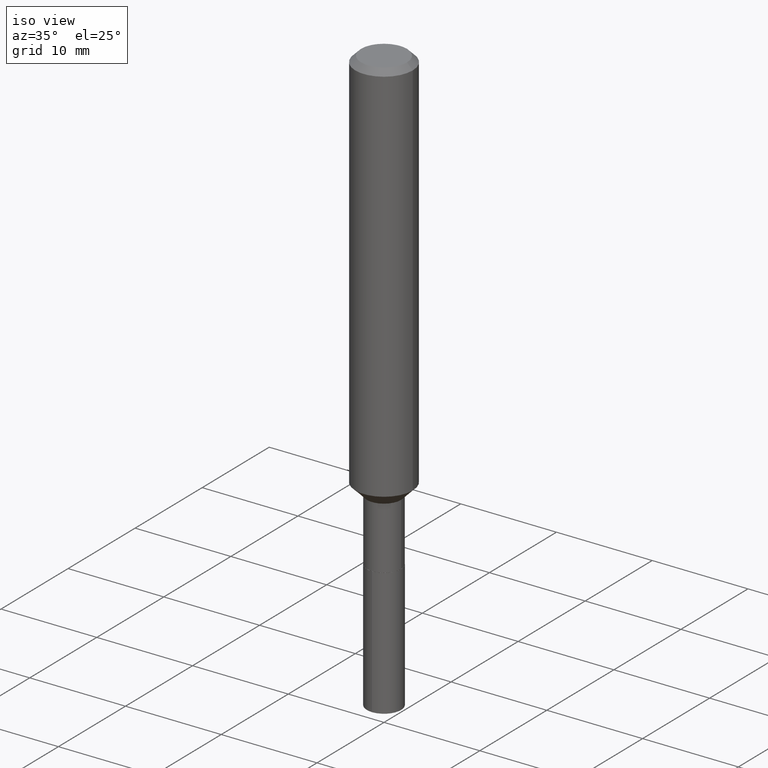
[diagram: clean part render]
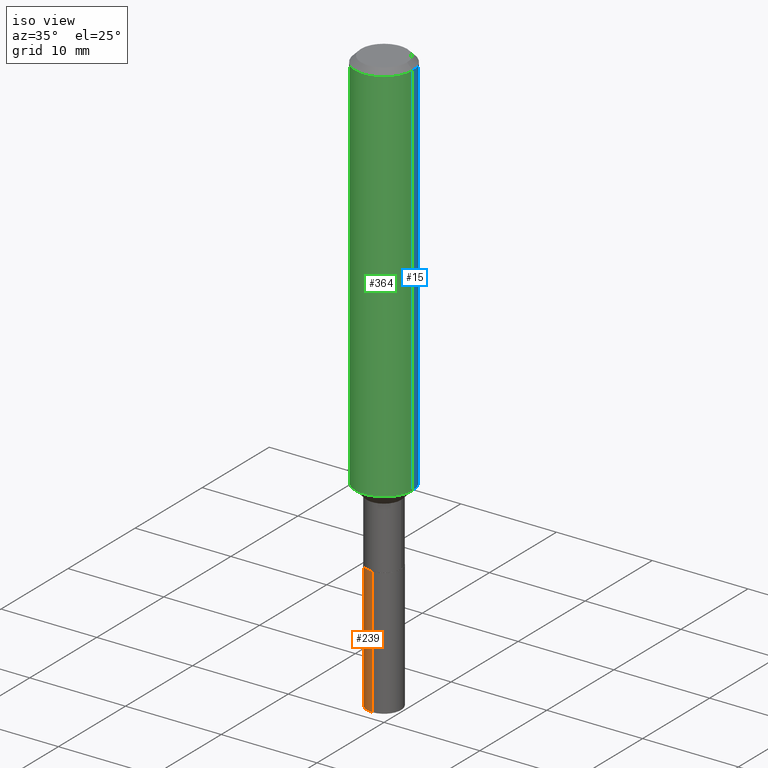
[diagram: same view with three faces highlighted in distinct colors, each labeled with its STEP entity id]
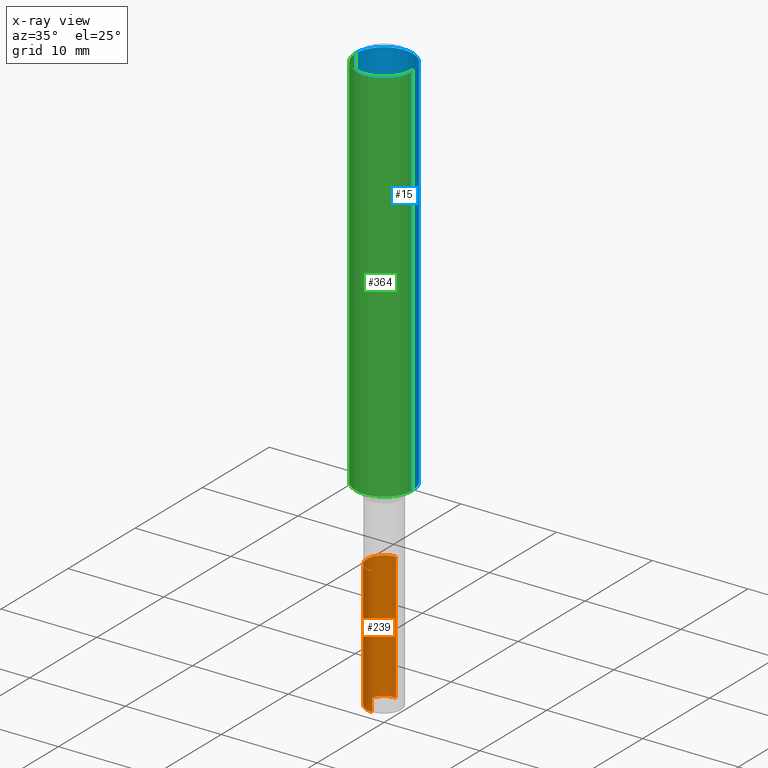
[diagram: x-ray of the same camera — body ghosted, the three highlighted faces saturated]
A machine part, iso view with three faces highlighted in distinct colors.
The next image is the same camera in x-ray (body ghosted, the three faces saturated) — at least one of them is partly hidden behind the body in this view.
Their STEP definitions:

[orange] entity #239 — the highlighted cylindrical surface (edge-blend (fillet) strip) has radius 1.7856 mm, axis along (-0, 0, 1).
#4 = AXIS2_PLACEMENT_3D ( 'NONE', #158, #52, #311 ) ;
#9 = DIRECTION ( 'NONE',  ( -6.982962677686266711E-15, -1.000000000000000000, 3.885985766236505386E-15 ) ) ;
#11 = AXIS2_PLACEMENT_3D ( 'NONE', #389, #416, #9 ) ;
#16 = DIRECTION ( 'NONE',  ( -2.426947592678621313E-29, 3.518004770746482411E-15, 1.000000000000000000 ) ) ;
#22 = VECTOR ( 'NONE', #387, 39.37007874015748143 ) ;
#41 = EDGE_CURVE ( 'NONE', #354, #154, #437, .T. ) ;
#52 = DIRECTION ( 'NONE',  ( -2.426947592678621032E-29, 3.518004770746482806E-15, 1.000000000000000000 ) ) ;
#54 = DIRECTION ( 'NONE',  ( -2.426947592678621032E-29, 3.518004770746482806E-15, 1.000000000000000000 ) ) ;
#59 = EDGE_CURVE ( 'NONE', #354, #270, #84, .T. ) ;
#67 = VERTEX_POINT ( 'NONE', #468 ) ;
#84 = LINE ( 'NONE', #228, #22 ) ;
#89 = ORIENTED_EDGE ( 'NONE', *, *, #427, .F. ) ;
#92 = LINE ( 'NONE', #394, #269 ) ;
#129 = ORIENTED_EDGE ( 'NONE', *, *, #366, .T. ) ;
#143 = AXIS2_PLACEMENT_3D ( 'NONE', #396, #54, #236 ) ;
#154 = VERTEX_POINT ( 'NONE', #446 ) ;
#158 = CARTESIAN_POINT ( 'NONE',  ( 4.621202403048053204E-29, -6.597852286011892490E-15, -1.889700000000000157 ) ) ;
#164 = CIRCLE ( 'NONE', #4, 0.07030000000000000138 ) ;
#204 = EDGE_LOOP ( 'NONE', ( #457, #488, #129, #89 ) ) ;
#228 = CARTESIAN_POINT ( 'NONE',  ( 4.995115432393966874E-16, 0.07029999999999340943, -1.889700000000000157 ) ) ;
#236 = DIRECTION ( 'NONE',  ( -6.982962677686266711E-15, -1.000000000000000000, 3.885985766236504597E-15 ) ) ;
#239 = ADVANCED_FACE ( 'NONE', ( #385 ), #349, .T. ) ;
#269 = VECTOR ( 'NONE', #16, 39.37007874015748143 ) ;
#270 = VERTEX_POINT ( 'NONE', #391 ) ;
#311 = DIRECTION ( 'NONE',  ( -6.982962677686265133E-15, -1.000000000000000000, 3.885985766236505386E-15 ) ) ;
#345 = CARTESIAN_POINT ( 'NONE',  ( 4.995115432394094078E-16, 0.07029999999999157756, -2.413208093564270129 ) ) ;
#349 = CYLINDRICAL_SURFACE ( 'NONE', #11, 0.07030000000000000138 ) ;
#354 = VERTEX_POINT ( 'NONE', #345 ) ;
#366 = EDGE_CURVE ( 'NONE', #154, #67, #92, .T. ) ;
#385 = FACE_OUTER_BOUND ( 'NONE', #204, .T. ) ;
#387 = DIRECTION ( 'NONE',  ( -2.426947592678621313E-29, 3.518004770746482411E-15, 1.000000000000000000 ) ) ;
#389 = CARTESIAN_POINT ( 'NONE',  ( 4.621202403048052644E-29, -6.597852286011891701E-15, -1.889699999999999713 ) ) ;
#391 = CARTESIAN_POINT ( 'NONE',  ( 4.995115432394095064E-16, 0.07029999999999340943, -1.889700000000000379 ) ) ;
#394 = CARTESIAN_POINT ( 'NONE',  ( -4.909022762412983059E-16, -0.07030000000000660720, -1.889699999999999491 ) ) ;
#396 = CARTESIAN_POINT ( 'NONE',  ( 5.891729110471632150E-29, -8.439556256695389981E-15, -2.413208093564270129 ) ) ;
#416 = DIRECTION ( 'NONE',  ( -2.426947592678621032E-29, 3.518004770746482806E-15, 1.000000000000000000 ) ) ;
#427 = EDGE_CURVE ( 'NONE', #270, #67, #164, .T. ) ;
#437 = CIRCLE ( 'NONE', #143, 0.07030000000000001525 ) ;
#446 = CARTESIAN_POINT ( 'NONE',  ( -4.909022762412856842E-16, -0.07030000000000845295, -2.413208093564269685 ) ) ;
#457 = ORIENTED_EDGE ( 'NONE', *, *, #59, .F. ) ;
#468 = CARTESIAN_POINT ( 'NONE',  ( -4.909022762412983059E-16, -0.07030000000000659333, -1.889699999999999713 ) ) ;
#488 = ORIENTED_EDGE ( 'NONE', *, *, #41, .T. ) ;

[blue] entity #15 — the highlighted cylindrical surface (edge-blend (fillet) strip) has radius 2.9997 mm, axis along (-0, 0, 1).
#3 = AXIS2_PLACEMENT_3D ( 'NONE', #241, #327, #139 ) ;
#10 = CYLINDRICAL_SURFACE ( 'NONE', #225, 0.1181000000000001077 ) ;
#14 = FACE_OUTER_BOUND ( 'NONE', #148, .T. ) ;
#15 = ADVANCED_FACE ( 'NONE', ( #14 ), #10, .T. ) ;
#20 = DIRECTION ( 'NONE',  ( 1.000000000000000000, -6.982962677686269077E-15, 0.000000000000000000 ) ) ;
#36 = CIRCLE ( 'NONE', #3, 0.1180999999999999966 ) ;
#72 = VERTEX_POINT ( 'NONE', #431 ) ;
#75 = CARTESIAN_POINT ( 'NONE',  ( 0.1181000000000001632, -6.357289221765599043E-15, -1.584600000000000453 ) ) ;
#76 = DIRECTION ( 'NONE',  ( -2.445468806185136877E-29, 3.491481338843145188E-15, 1.000000000000000000 ) ) ;
#78 = EDGE_CURVE ( 'NONE', #167, #72, #36, .T. ) ;
#87 = EDGE_CURVE ( 'NONE', #242, #412, #334, .T. ) ;
#93 = VECTOR ( 'NONE', #159, 39.37007874015748143 ) ;
#124 = CARTESIAN_POINT ( 'NONE',  ( 0.1180999999999999966, -9.071566814582237199E-16, -0.02362000000000014088 ) ) ;
#139 = DIRECTION ( 'NONE',  ( 1.000000000000000000, -6.982962677686266711E-15, 0.000000000000000000 ) ) ;
#148 = EDGE_LOOP ( 'NONE', ( #255, #342, #302, #380 ) ) ;
#159 = DIRECTION ( 'NONE',  ( -2.445468806185136877E-29, 3.491481338843145188E-15, 1.000000000000000000 ) ) ;
#167 = VERTEX_POINT ( 'NONE', #124 ) ;
#176 = AXIS2_PLACEMENT_3D ( 'NONE', #480, #289, #20 ) ;
#199 = LINE ( 'NONE', #235, #444 ) ;
#200 = DIRECTION ( 'NONE',  ( 1.000000000000000000, -6.982962677686266711E-15, 4.876176775795935793E-29 ) ) ;
#225 = AXIS2_PLACEMENT_3D ( 'NONE', #435, #426, #200 ) ;
#230 = CARTESIAN_POINT ( 'NONE',  ( -0.1181000000000001077, 8.391509709326790846E-16, -5.809262341591049389E-30 ) ) ;
#235 = CARTESIAN_POINT ( 'NONE',  ( 0.1181000000000001077, -8.246878922347488542E-16, 5.758764772215005345E-30 ) ) ;
#241 = CARTESIAN_POINT ( 'NONE',  ( 5.776197320209327532E-31, -8.246878922347559293E-17, -0.02362000000000014088 ) ) ;
#242 = VERTEX_POINT ( 'NONE', #75 ) ;
#255 = ORIENTED_EDGE ( 'NONE', *, *, #87, .T. ) ;
#256 = CARTESIAN_POINT ( 'NONE',  ( -0.1181000000000001632, -4.693450358598171005E-15, -1.584600000000000453 ) ) ;
#289 = DIRECTION ( 'NONE',  ( -2.445468806185136597E-29, 3.491481338843145583E-15, 1.000000000000000000 ) ) ;
#302 = ORIENTED_EDGE ( 'NONE', *, *, #78, .F. ) ;
#327 = DIRECTION ( 'NONE',  ( -2.445468806185136597E-29, 3.491481338843145583E-15, 1.000000000000000000 ) ) ;
#334 = CIRCLE ( 'NONE', #176, 0.1181000000000001909 ) ;
#342 = ORIENTED_EDGE ( 'NONE', *, *, #409, .T. ) ;
#348 = LINE ( 'NONE', #230, #93 ) ;
#380 = ORIENTED_EDGE ( 'NONE', *, *, #490, .F. ) ;
#409 = EDGE_CURVE ( 'NONE', #412, #72, #348, .T. ) ;
#412 = VERTEX_POINT ( 'NONE', #256 ) ;
#426 = DIRECTION ( 'NONE',  ( -2.445468806185136597E-29, 3.491481338843145583E-15, 1.000000000000000000 ) ) ;
#431 = CARTESIAN_POINT ( 'NONE',  ( -0.1180999999999999966, -1.968384088444482555E-15, -0.02362000000000014088 ) ) ;
#435 = CARTESIAN_POINT ( 'NONE',  ( 0.000000000000000000, 0.000000000000000000, 0.000000000000000000 ) ) ;
#444 = VECTOR ( 'NONE', #76, 39.37007874015748143 ) ;
#480 = CARTESIAN_POINT ( 'NONE',  ( 3.875089870280967892E-29, -5.532601329530849202E-15, -1.584600000000000453 ) ) ;
#490 = EDGE_CURVE ( 'NONE', #242, #167, #199, .T. ) ;

[green] entity #364 — the highlighted cylindrical surface (edge-blend (fillet) strip) has radius 2.9997 mm, axis along (-0, 0, 1).
#28 = ORIENTED_EDGE ( 'NONE', *, *, #490, .T. ) ;
#46 = DIRECTION ( 'NONE',  ( 1.000000000000000000, -6.982962677686269077E-15, 0.000000000000000000 ) ) ;
#49 = CIRCLE ( 'NONE', #399, 0.1181000000000001909 ) ;
#57 = AXIS2_PLACEMENT_3D ( 'NONE', #127, #390, #306 ) ;
#72 = VERTEX_POINT ( 'NONE', #431 ) ;
#75 = CARTESIAN_POINT ( 'NONE',  ( 0.1181000000000001632, -6.357289221765599043E-15, -1.584600000000000453 ) ) ;
#76 = DIRECTION ( 'NONE',  ( -2.445468806185136877E-29, 3.491481338843145188E-15, 1.000000000000000000 ) ) ;
#90 = CARTESIAN_POINT ( 'NONE',  ( 3.875089870280967892E-29, -5.532601329530849202E-15, -1.584600000000000453 ) ) ;
#93 = VECTOR ( 'NONE', #159, 39.37007874015748143 ) ;
#111 = DIRECTION ( 'NONE',  ( 1.000000000000000000, -6.982962677686266711E-15, 0.000000000000000000 ) ) ;
#114 = DIRECTION ( 'NONE',  ( -2.445468806185136597E-29, 3.491481338843145583E-15, 1.000000000000000000 ) ) ;
#124 = CARTESIAN_POINT ( 'NONE',  ( 0.1180999999999999966, -9.071566814582237199E-16, -0.02362000000000014088 ) ) ;
#127 = CARTESIAN_POINT ( 'NONE',  ( 0.000000000000000000, 0.000000000000000000, 0.000000000000000000 ) ) ;
#134 = ORIENTED_EDGE ( 'NONE', *, *, #483, .T. ) ;
#159 = DIRECTION ( 'NONE',  ( -2.445468806185136877E-29, 3.491481338843145188E-15, 1.000000000000000000 ) ) ;
#167 = VERTEX_POINT ( 'NONE', #124 ) ;
#170 = CIRCLE ( 'NONE', #205, 0.1180999999999999966 ) ;
#199 = LINE ( 'NONE', #235, #444 ) ;
#205 = AXIS2_PLACEMENT_3D ( 'NONE', #428, #246, #111 ) ;
#220 = EDGE_LOOP ( 'NONE', ( #448, #134, #28, #298 ) ) ;
#230 = CARTESIAN_POINT ( 'NONE',  ( -0.1181000000000001077, 8.391509709326790846E-16, -5.809262341591049389E-30 ) ) ;
#235 = CARTESIAN_POINT ( 'NONE',  ( 0.1181000000000001077, -8.246878922347488542E-16, 5.758764772215005345E-30 ) ) ;
#242 = VERTEX_POINT ( 'NONE', #75 ) ;
#246 = DIRECTION ( 'NONE',  ( -2.445468806185136597E-29, 3.491481338843145583E-15, 1.000000000000000000 ) ) ;
#256 = CARTESIAN_POINT ( 'NONE',  ( -0.1181000000000001632, -4.693450358598171005E-15, -1.584600000000000453 ) ) ;
#276 = CYLINDRICAL_SURFACE ( 'NONE', #57, 0.1181000000000001077 ) ;
#291 = EDGE_CURVE ( 'NONE', #72, #167, #170, .T. ) ;
#298 = ORIENTED_EDGE ( 'NONE', *, *, #291, .F. ) ;
#306 = DIRECTION ( 'NONE',  ( 1.000000000000000000, -6.982962677686266711E-15, 4.876176775795935793E-29 ) ) ;
#321 = FACE_OUTER_BOUND ( 'NONE', #220, .T. ) ;
#348 = LINE ( 'NONE', #230, #93 ) ;
#364 = ADVANCED_FACE ( 'NONE', ( #321 ), #276, .T. ) ;
#390 = DIRECTION ( 'NONE',  ( -2.445468806185136597E-29, 3.491481338843145583E-15, 1.000000000000000000 ) ) ;
#399 = AXIS2_PLACEMENT_3D ( 'NONE', #90, #114, #46 ) ;
#409 = EDGE_CURVE ( 'NONE', #412, #72, #348, .T. ) ;
#412 = VERTEX_POINT ( 'NONE', #256 ) ;
#428 = CARTESIAN_POINT ( 'NONE',  ( 5.776197320209327532E-31, -8.246878922347559293E-17, -0.02362000000000014088 ) ) ;
#431 = CARTESIAN_POINT ( 'NONE',  ( -0.1180999999999999966, -1.968384088444482555E-15, -0.02362000000000014088 ) ) ;
#444 = VECTOR ( 'NONE', #76, 39.37007874015748143 ) ;
#448 = ORIENTED_EDGE ( 'NONE', *, *, #409, .F. ) ;
#483 = EDGE_CURVE ( 'NONE', #412, #242, #49, .T. ) ;
#490 = EDGE_CURVE ( 'NONE', #242, #167, #199, .T. ) ;